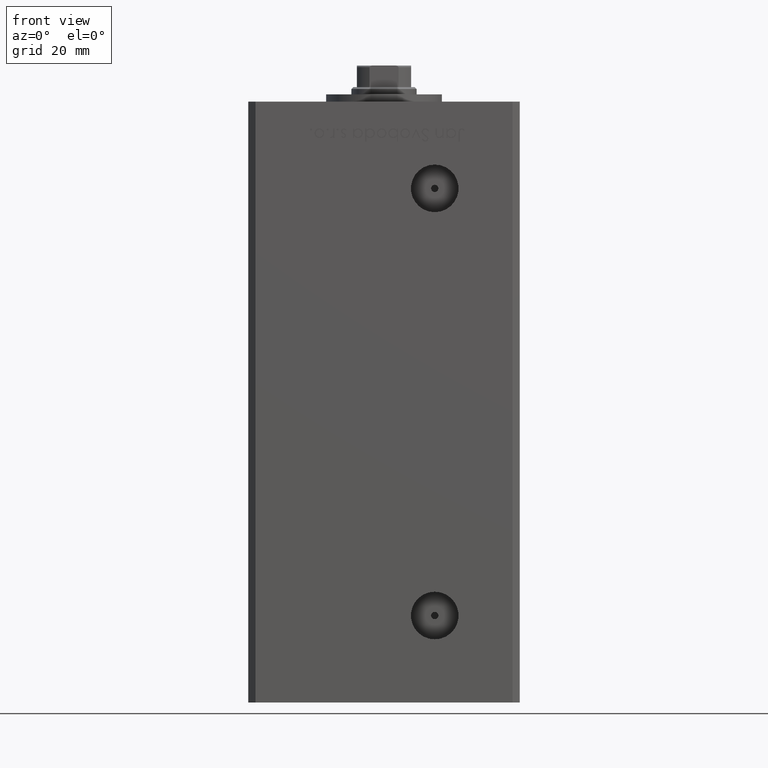
[diagram: clean part render]
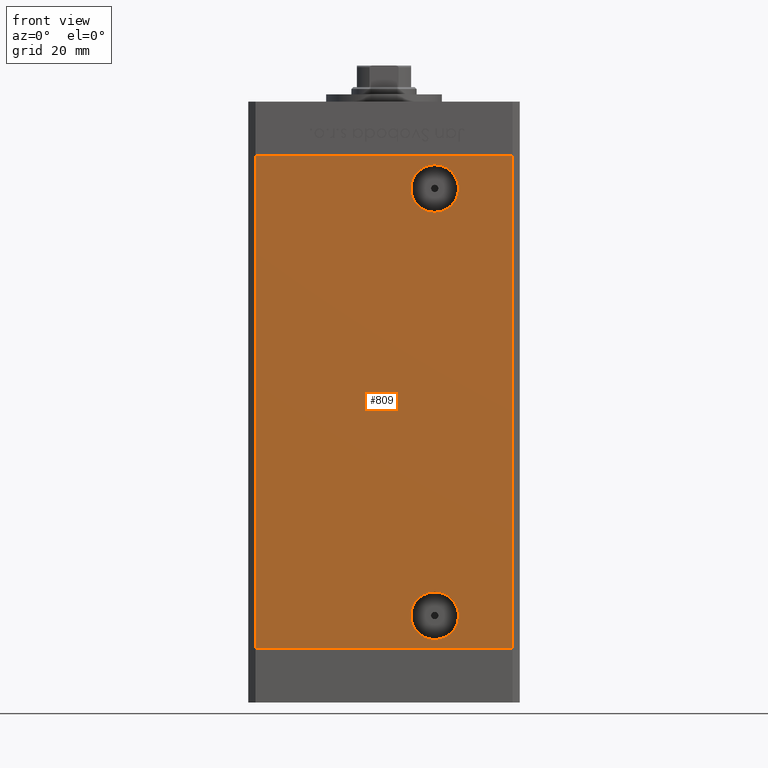
[diagram: same view with one face highlighted and labeled with its STEP entity id]
A machine part, front view. The second image highlights one B-rep face of the part: STEP entity #809.
In plain terms, the highlighted planar face has unit normal (0, 1, 0).
Its self-contained STEP definition (entity closure, byte-faithful):
#150 = EDGE_LOOP ( 'NONE', ( #30500, #36649 ) ) ;
#383 = DIRECTION ( 'NONE',  ( -0.000000000000000000, -0.000000000000000000, -1.000000000000000000 ) ) ;
#490 = EDGE_LOOP ( 'NONE', ( #28310, #4730, #43904, #10072 ) ) ;
#809 = ADVANCED_FACE ( 'NONE', ( #29742, #45850, #21554 ), #1241, .F. ) ;
#1241 = PLANE ( 'NONE',  #17077 ) ;
#1767 = CARTESIAN_POINT ( 'NONE',  ( -35.49999999999999289, -32.50000000000000000, 0.000000000000000000 ) ) ;
#1834 = VERTEX_POINT ( 'NONE', #19149 ) ;
#1969 = CARTESIAN_POINT ( 'NONE',  ( -35.49999999999999289, -32.50000000000000000, 136.0000000000000000 ) ) ;
#2223 = DIRECTION ( 'NONE',  ( 1.000000000000000000, 0.000000000000000000, 0.000000000000000000 ) ) ;
#3101 = DIRECTION ( 'NONE',  ( 1.000000000000000000, 0.000000000000000000, 0.000000000000000000 ) ) ;
#3294 = CARTESIAN_POINT ( 'NONE',  ( 13.99999999999999112, -32.50000000000000000, 9.000000000000007105 ) ) ;
#4730 = ORIENTED_EDGE ( 'NONE', *, *, #35680, .F. ) ;
#5952 = VERTEX_POINT ( 'NONE', #13278 ) ;
#6037 = EDGE_CURVE ( 'NONE', #5952, #1834, #6950, .T. ) ;
#6091 = AXIS2_PLACEMENT_3D ( 'NONE', #19467, #35833, #11267 ) ;
#6140 = DIRECTION ( 'NONE',  ( 0.000000000000000000, 0.000000000000000000, -1.000000000000000000 ) ) ;
#6950 = CIRCLE ( 'NONE', #25506, 6.579999999999998295 ) ;
#7187 = CARTESIAN_POINT ( 'NONE',  ( 35.49999999999999289, -32.50000000000000000, 136.0000000000000000 ) ) ;
#7377 = CARTESIAN_POINT ( 'NONE',  ( 35.49999999999999289, -32.50000000000000000, 0.000000000000000000 ) ) ;
#7499 = DIRECTION ( 'NONE',  ( 0.000000000000000000, 0.000000000000000000, -1.000000000000000000 ) ) ;
#7863 = CIRCLE ( 'NONE', #30624, 6.579999999999998295 ) ;
#9359 = EDGE_CURVE ( 'NONE', #1834, #5952, #7863, .T. ) ;
#9960 = LINE ( 'NONE', #32837, #48456 ) ;
#10028 = VERTEX_POINT ( 'NONE', #7377 ) ;
#10072 = ORIENTED_EDGE ( 'NONE', *, *, #17379, .T. ) ;
#11267 = DIRECTION ( 'NONE',  ( 0.000000000000000000, 0.000000000000000000, -1.000000000000000000 ) ) ;
#12246 = LINE ( 'NONE', #16987, #17523 ) ;
#13216 = VECTOR ( 'NONE', #2223, 1000.000000000000000 ) ;
#13278 = CARTESIAN_POINT ( 'NONE',  ( 13.99999999999999112, -32.50000000000000000, 15.58000000000000718 ) ) ;
#14246 = EDGE_CURVE ( 'NONE', #48904, #33368, #50772, .T. ) ;
#14526 = CARTESIAN_POINT ( 'NONE',  ( 13.99999999999999112, -32.50000000000000000, 127.0000000000000000 ) ) ;
#15042 = DIRECTION ( 'NONE',  ( 0.000000000000000000, 0.000000000000000000, -1.000000000000000000 ) ) ;
#15322 = AXIS2_PLACEMENT_3D ( 'NONE', #14526, #34593, #15042 ) ;
#16987 = CARTESIAN_POINT ( 'NONE',  ( -35.49999999999999289, -32.50000000000000000, 136.0000000000000000 ) ) ;
#17077 = AXIS2_PLACEMENT_3D ( 'NONE', #18116, #34208, #30243 ) ;
#17379 = EDGE_CURVE ( 'NONE', #48904, #38765, #12246, .T. ) ;
#17523 = VECTOR ( 'NONE', #383, 1000.000000000000000 ) ;
#18056 = ORIENTED_EDGE ( 'NONE', *, *, #35979, .T. ) ;
#18116 = CARTESIAN_POINT ( 'NONE',  ( -35.49999999999999289, -32.50000000000000000, 136.0000000000000000 ) ) ;
#18458 = CARTESIAN_POINT ( 'NONE',  ( -35.49999999999999289, -32.50000000000000000, 136.0000000000000000 ) ) ;
#19149 = CARTESIAN_POINT ( 'NONE',  ( 13.99999999999999112, -32.50000000000000000, 2.420000000000009699 ) ) ;
#19467 = CARTESIAN_POINT ( 'NONE',  ( 13.99999999999999112, -32.50000000000000000, 127.0000000000000000 ) ) ;
#21554 = FACE_BOUND ( 'NONE', #46159, .T. ) ;
#23996 = VERTEX_POINT ( 'NONE', #41307 ) ;
#25506 = AXIS2_PLACEMENT_3D ( 'NONE', #43095, #27240, #6140 ) ;
#27240 = DIRECTION ( 'NONE',  ( 0.000000000000000000, -1.000000000000000000, 0.000000000000000000 ) ) ;
#27333 = VERTEX_POINT ( 'NONE', #48188 ) ;
#28310 = ORIENTED_EDGE ( 'NONE', *, *, #47029, .T. ) ;
#28366 = DIRECTION ( 'NONE',  ( 0.000000000000000000, -1.000000000000000000, 0.000000000000000000 ) ) ;
#28845 = VECTOR ( 'NONE', #51204, 1000.000000000000000 ) ;
#29742 = FACE_BOUND ( 'NONE', #150, .T. ) ;
#30184 = ORIENTED_EDGE ( 'NONE', *, *, #33630, .T. ) ;
#30243 = DIRECTION ( 'NONE',  ( 0.000000000000000000, -0.000000000000000000, 1.000000000000000000 ) ) ;
#30500 = ORIENTED_EDGE ( 'NONE', *, *, #9359, .F. ) ;
#30624 = AXIS2_PLACEMENT_3D ( 'NONE', #3294, #28366, #7499 ) ;
#32837 = CARTESIAN_POINT ( 'NONE',  ( -35.49999999999999289, -32.50000000000000000, 0.000000000000000000 ) ) ;
#33368 = VERTEX_POINT ( 'NONE', #7187 ) ;
#33630 = EDGE_CURVE ( 'NONE', #23996, #27333, #43141, .T. ) ;
#34208 = DIRECTION ( 'NONE',  ( 0.000000000000000000, 1.000000000000000000, 0.000000000000000000 ) ) ;
#34333 = CARTESIAN_POINT ( 'NONE',  ( 35.49999999999999289, -32.50000000000000000, 136.0000000000000000 ) ) ;
#34593 = DIRECTION ( 'NONE',  ( -0.000000000000000000, 1.000000000000000000, -0.000000000000000000 ) ) ;
#35680 = EDGE_CURVE ( 'NONE', #33368, #10028, #46221, .T. ) ;
#35833 = DIRECTION ( 'NONE',  ( -0.000000000000000000, 1.000000000000000000, -0.000000000000000000 ) ) ;
#35979 = EDGE_CURVE ( 'NONE', #27333, #23996, #44889, .T. ) ;
#36649 = ORIENTED_EDGE ( 'NONE', *, *, #6037, .F. ) ;
#38765 = VERTEX_POINT ( 'NONE', #1767 ) ;
#41307 = CARTESIAN_POINT ( 'NONE',  ( 13.99999999999999112, -32.50000000000000000, 133.5800000000000125 ) ) ;
#43095 = CARTESIAN_POINT ( 'NONE',  ( 13.99999999999999112, -32.50000000000000000, 9.000000000000007105 ) ) ;
#43141 = CIRCLE ( 'NONE', #15322, 6.580000000000002736 ) ;
#43904 = ORIENTED_EDGE ( 'NONE', *, *, #14246, .F. ) ;
#44889 = CIRCLE ( 'NONE', #6091, 6.580000000000002736 ) ;
#45850 = FACE_OUTER_BOUND ( 'NONE', #490, .T. ) ;
#46159 = EDGE_LOOP ( 'NONE', ( #18056, #30184 ) ) ;
#46221 = LINE ( 'NONE', #34333, #28845 ) ;
#47029 = EDGE_CURVE ( 'NONE', #38765, #10028, #9960, .T. ) ;
#48188 = CARTESIAN_POINT ( 'NONE',  ( 13.99999999999999112, -32.50000000000000000, 120.4200000000000017 ) ) ;
#48456 = VECTOR ( 'NONE', #3101, 1000.000000000000000 ) ;
#48904 = VERTEX_POINT ( 'NONE', #18458 ) ;
#50772 = LINE ( 'NONE', #1969, #13216 ) ;
#51204 = DIRECTION ( 'NONE',  ( -0.000000000000000000, -0.000000000000000000, -1.000000000000000000 ) ) ;